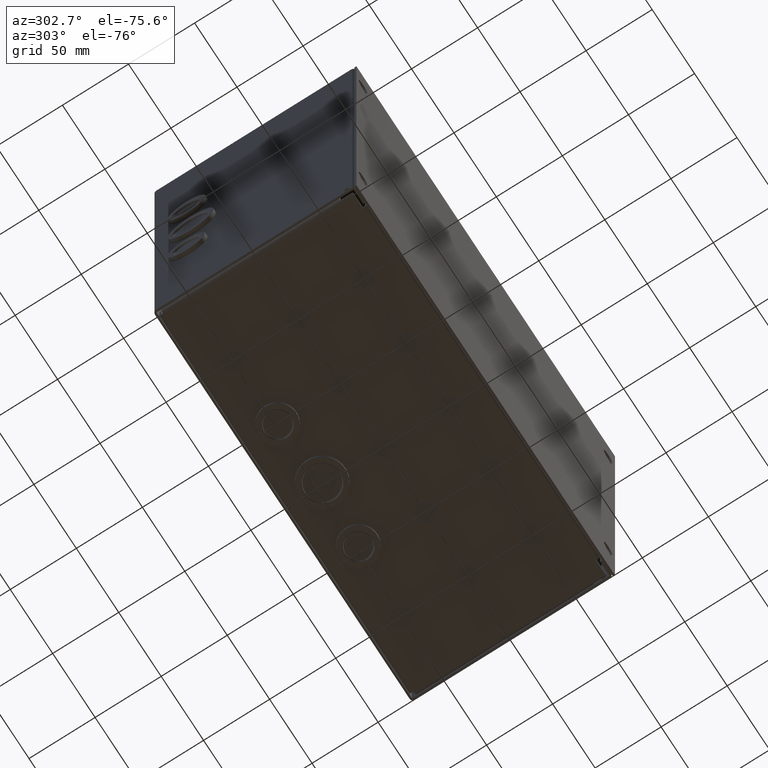
[diagram: clean part render]
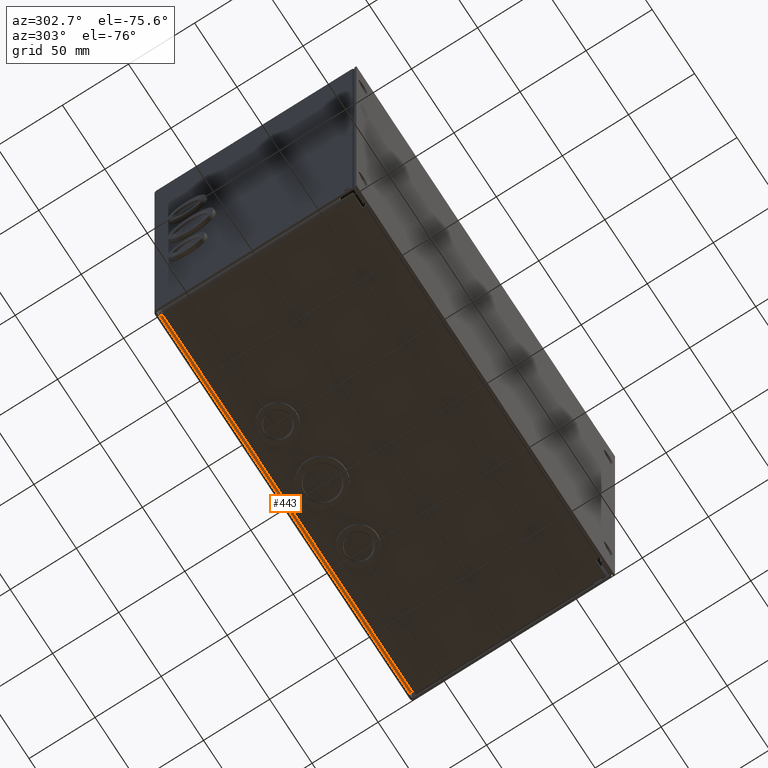
[diagram: same view with one face highlighted and labeled with its STEP entity id]
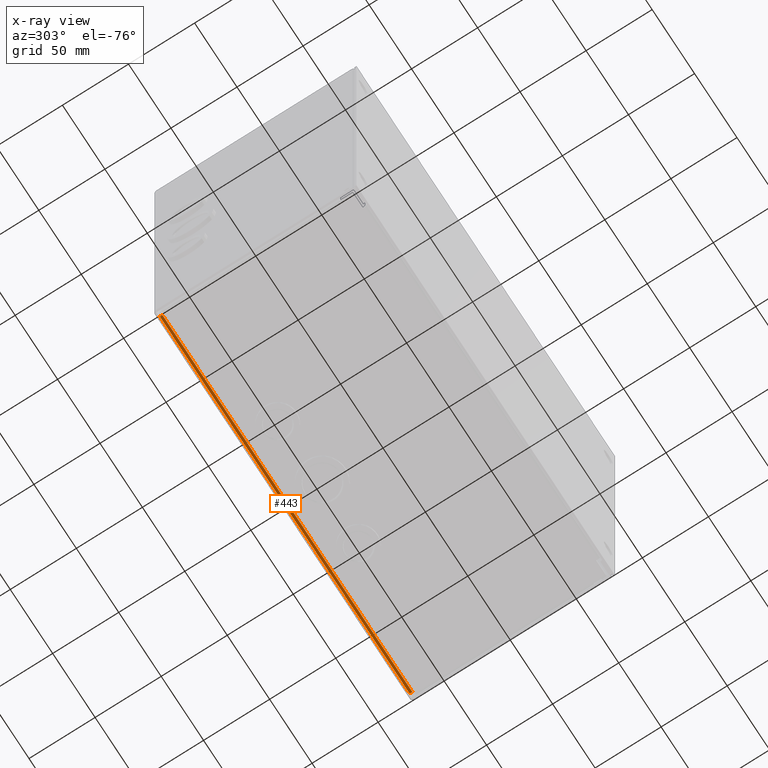
[diagram: x-ray of the same camera — body ghosted, the highlighted face saturated]
A machine part, auxiliary view. The second image highlights one B-rep face of the part: STEP entity #443.
The next image is the same camera in x-ray: the body ghosted, the highlighted face saturated — about 0% of this face is hidden behind the body in this view.
In plain terms, the highlighted cylindrical surface (edge-blend (fillet) strip) has radius 2.3368 mm, axis along (-1, 0, -0).
Its self-contained STEP definition (entity closure, byte-faithful):
#443 = ADVANCED_FACE( '', ( #1139 ), #1140, .T. );
#1139 = FACE_OUTER_BOUND( '', #2249, .T. );
#1140 = CYLINDRICAL_SURFACE( '', #2250, 2.33680000000000 );
#2249 = EDGE_LOOP( '', ( #3402, #3403, #3404, #3405 ) );
#2250 = AXIS2_PLACEMENT_3D( '', #3406, #3407, #3408 );
#3402 = ORIENTED_EDGE( '', *, *, #5965, .T. );
#3403 = ORIENTED_EDGE( '', *, *, #5966, .F. );
#3404 = ORIENTED_EDGE( '', *, *, #5967, .F. );
#3405 = ORIENTED_EDGE( '', *, *, #5968, .F. );
#3406 = CARTESIAN_POINT( '', ( -147.304529442132, 2.33680000000000, -73.1012000000000 ) );
#3407 = DIRECTION( '', ( -1.00000000000000, -0.000000000000000, -0.000000000000000 ) );
#3408 = DIRECTION( '', ( 0.000000000000000, 1.00000000000000, 0.000000000000000 ) );
#5965 = EDGE_CURVE( '', #6975, #6976, #6977, .T. );
#5966 = EDGE_CURVE( '', #6978, #6976, #6979, .T. );
#5967 = EDGE_CURVE( '', #6980, #6978, #6981, .T. );
#5968 = EDGE_CURVE( '', #6975, #6980, #6982, .T. );
#6975 = VERTEX_POINT( '', #8452 );
#6976 = VERTEX_POINT( '', #8453 );
#6977 = LINE( '', #8454, #8455 );
#6978 = VERTEX_POINT( '', #8456 );
#6979 = CIRCLE( '', #8457, 2.33680000000000 );
#6980 = VERTEX_POINT( '', #8458 );
#6981 = LINE( '', #8459, #8460 );
#6982 = CIRCLE( '', #8461, 2.33680000000000 );
#8452 = CARTESIAN_POINT( '', ( -147.304529442132, 2.33680000000000, -75.4380000000000 ) );
#8453 = CARTESIAN_POINT( '', ( 147.304529442132, 2.33679999999995, -75.4380000000000 ) );
#8454 = CARTESIAN_POINT( '', ( -1040.50147500000, 2.33680000000000, -75.4380000000000 ) );
#8455 = VECTOR( '', #10361, 1000.00000000000 );
#8456 = CARTESIAN_POINT( '', ( 147.304529442132, 0.000000000000000, -73.1012000000000 ) );
#8457 = AXIS2_PLACEMENT_3D( '', #10362, #10363, #10364 );
#8458 = CARTESIAN_POINT( '', ( -147.304529442132, 0.000000000000000, -73.1012000000000 ) );
#8459 = CARTESIAN_POINT( '', ( 148.142325000000, 0.000000000000000, -73.1012000000000 ) );
#8460 = VECTOR( '', #10365, 1000.00000000000 );
#8461 = AXIS2_PLACEMENT_3D( '', #10366, #10367, #10368 );
#10361 = DIRECTION( '', ( 1.00000000000000, -1.54074395550979E-033, 1.33375955164450E-017 ) );
#10362 = CARTESIAN_POINT( '', ( 147.304529442132, 2.33680000000000, -73.1012000000000 ) );
#10363 = DIRECTION( '', ( 1.00000000000000, 0.000000000000000, 0.000000000000000 ) );
#10364 = DIRECTION( '', ( 0.000000000000000, 1.00000000000000, 0.000000000000000 ) );
#10365 = DIRECTION( '', ( 1.00000000000000, 0.000000000000000, 0.000000000000000 ) );
#10366 = CARTESIAN_POINT( '', ( -147.304529442132, 2.33680000000000, -73.1012000000000 ) );
#10367 = DIRECTION( '', ( -1.00000000000000, 0.000000000000000, 0.000000000000000 ) );
#10368 = DIRECTION( '', ( 0.000000000000000, 1.00000000000000, 0.000000000000000 ) );